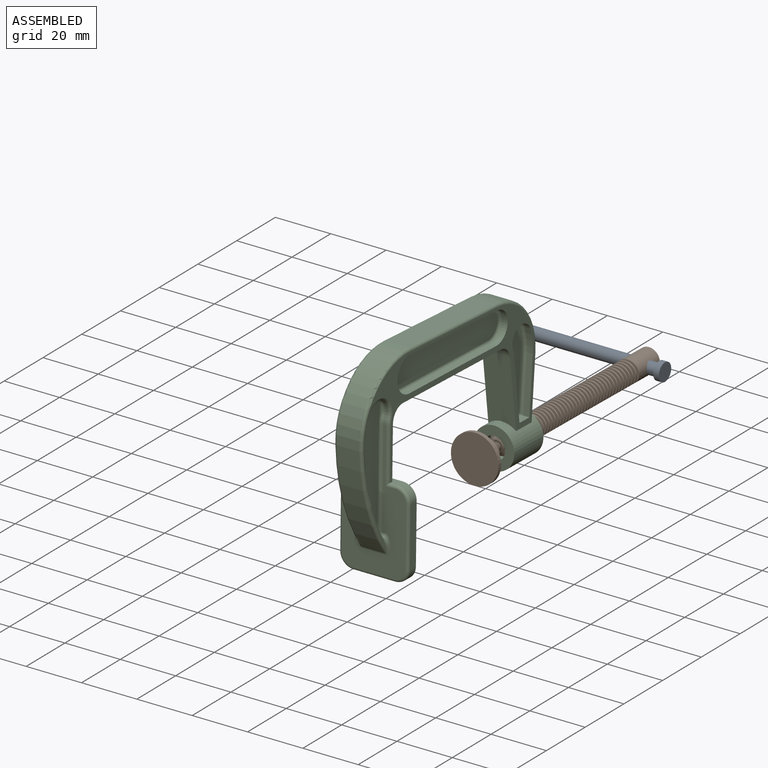
[diagram: assembled view]
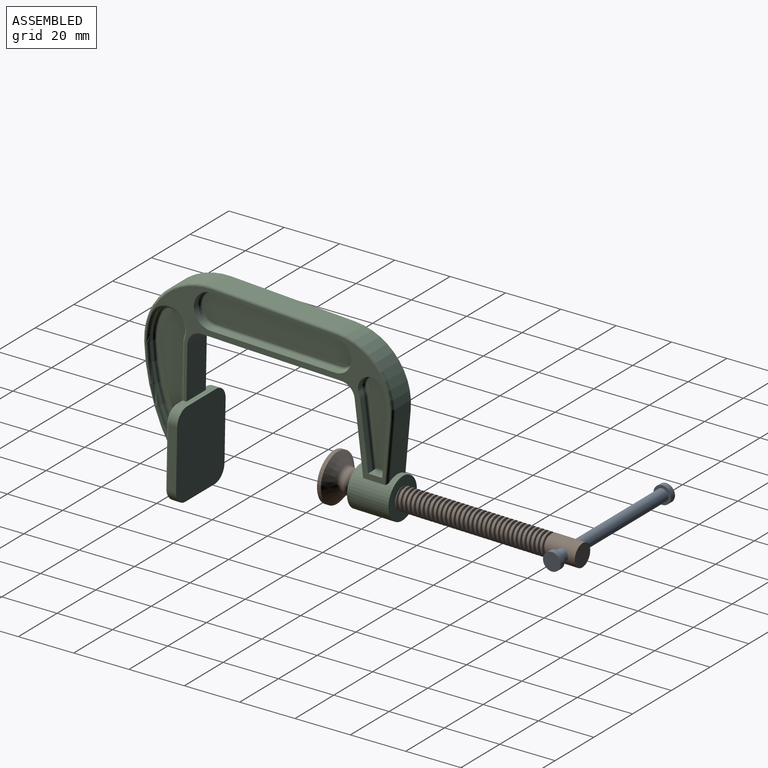
[diagram: assembled view, second angle]
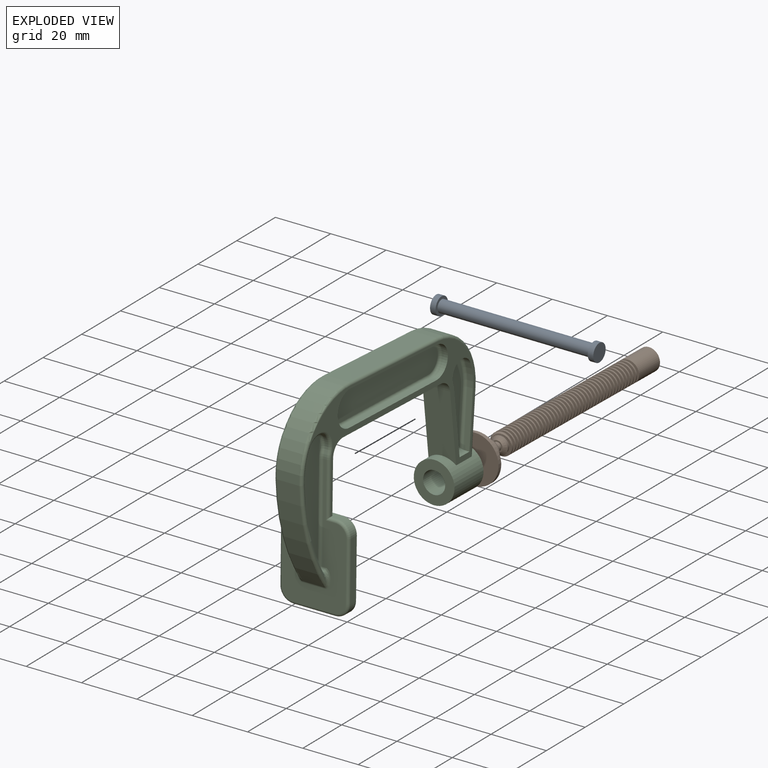
[diagram: exploded view]
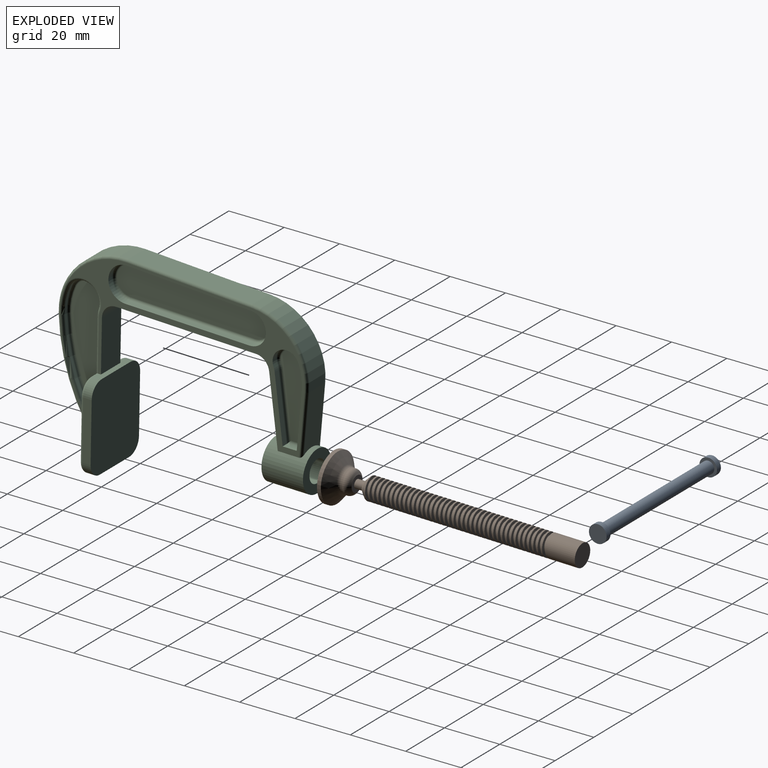
[diagram: exploded view, second angle]
ASSEMBLY  parts=3 mates=2
PART A: 7 faces, bbox 59x6.4x6.4 mm
  f0: cylinder r=2.2mm len=55mm, axis (-1,0,0), area 760.3mm2, adj f3,f6
  f1: cylinder r=3.2mm len=6.4mm, axis (-1,0,0), area 40.2mm2, adj f2,f3
  f2: plane 6.4x6.4mm, normal (1,0,0), area 32.2mm2, adj f1
  f3: plane 6.4x6.4mm, normal (-1,0,0), area 17mm2, adj f0,f1
  f4: cylinder r=3.2mm len=6.4mm, axis (1,0,0), area 40.2mm2, adj f5,f6
  f5: plane 6.4x6.4mm, normal (-1,0,0), area 32.2mm2, adj f4
  f6: plane 6.4x6.4mm, normal (1,0,0), area 17mm2, adj f0,f4
PART B: 23 faces, bbox 17.2x89.9x17.2 mm
  f0: plane 4.05x1mm, normal (0,0,-1), area 1mm2, adj f1,f2,f3,f4,f5,f6
  f1: cylinder r=4mm len=76.43mm, axis (0,-1,0), area 813.4mm2, adj f0,f2,f4,f5,f6,f7,f8,f9
  f2: bspline ~66.75x9.19mm, area 915.6mm2, adj f0,f1,f3,f11
  f3: cylinder r=3mm len=67.34mm, axis (0,1,0), area 828.8mm2, adj f0,f2,f4,f11
  f4: bspline ~67.55x9.19mm, area 928.1mm2, adj f0,f1,f3,f5,f7,f11
  f5: extruded ~3.05x0.02mm, area 0.1mm2, adj f0,f1,f4,f6
  f6: cylinder r=2.25mm len=8mm, axis (1,0,0), area 103.5mm2, adj f0,f1,f5,f8,f10,f12
  f7: cone r=2mm half-angle=45deg, axis (0,1,0), area 4.1mm2, adj f1,f4,f11
  f8: extruded ~2.45x0.02mm, area 0.1mm2, adj f1,f6,f9,f10
  f9: plane 8x8mm, normal (0,1,0), area 50.3mm2, adj f1,f8,f10
  f10: plane 2.45x0.01mm, normal (0,0,-1), area 0mm2, adj f1,f6,f8,f9
  f11: cone r=2mm half-angle=45deg, axis (0,1,0), area 31.4mm2, adj f2,f3,f4,f7,f13
  f12: cylinder r=4mm len=4.5mm, axis (0,-1,0), area 16.6mm2, adj f6
  f13: plane 4x4mm, normal (0,-1,0), area 5.3mm2, adj f11,f14
  f14: cylinder r=1.52mm len=3.06mm, axis (0,-1,0), area 29.2mm2, adj f13,f15
  f15: plane 5.63x5.63mm, normal (0,1,0), area 17.7mm2, adj f14,f16
  f16: cone r=3.39mm half-angle=55.5deg, axis (0,-1,0), area 13.5mm2, adj f15,f17
  f17: torus R=2.25mm, axis (0,-1,0), area 48.1mm2, adj f16,f18
  f18: cylinder r=4.25mm len=8.51mm, axis (0,-1,0), area 12.8mm2, adj f17,f19
  f19: torus R=6.25mm, axis (0,-1,0), area 49.9mm2, adj f18,f20
  f20: cone r=8.62mm half-angle=50.5deg, axis (0,-1,0), area 201.3mm2, adj f19,f21
  f21: cylinder r=8.62mm len=17.23mm, axis (0,-1,0), area 75.5mm2, adj f20,f22
  f22: plane 17.23x17.23mm, normal (0,-1,0), area 233.2mm2, adj f21
PART C: 122 faces, bbox 26x97.9x73.8 mm
  f0: plane 86.35x47.08mm, normal (1,0,0), area 516.3mm2, adj f1,f3,f10,f11,f12,f13,f33,f34
  f1: plane 18.67x10mm, normal (0,1,-0.02), area 186.7mm2, adj f0,f2,f10,f52
  f2: plane 86.35x47.08mm, normal (-1,0,0), area 516.3mm2, adj f1,f3,f10,f11,f12,f13,f21,f22
  f3: cylinder r=7.36mm len=15.28mm, axis (0,1,-0.02), area 596.1mm2, adj f0,f2,f4,f5,f13,f14,f71,f85
  f4: plane 14.72x14.72mm, normal (0,-1,0.02), area 119.9mm2, adj f3,f59
  f5: plane 14.72x14.72mm, normal (0,1,-0.02), area 119.9mm2, adj f3,f59
  f6: cylinder r=21.6mm len=23.5mm, axis (-1,0,0), area 276.4mm2, adj f7,f14,f75,f89
  f7: plane 44.88x8mm, normal (0,0.06,1), area 359.7mm2, adj f6,f8,f79,f94
  f8: cylinder r=23.78mm len=25.23mm, axis (-1,0,0), area 316.2mm2, adj f7,f9,f78,f98
  f9: cylinder r=68mm len=38.14mm, axis (-1,0,0), area 327.6mm2, adj f8,f82,f93,f101
  f10: cylinder r=5mm len=10mm, axis (-1,0,0), area 79.4mm2, adj f0,f1,f2,f11
  f11: plane 50.47x10mm, normal (0,-0.04,-1), area 505mm2, adj f0,f2,f10,f12
  f12: cylinder r=5mm len=10mm, axis (-1,0,0), area 70.6mm2, adj f0,f2,f11,f13
  f13: plane 25.37x10.13mm, normal (0,-0.99,-0.12), area 240.7mm2, adj f0,f2,f3,f12
  f14: plane 21.07x8.04mm, normal (0,1,-0.09), area 162.5mm2, adj f3,f6,f71,f85
  f15: cylinder r=5.72mm len=10.93mm, axis (-1,0,0), area 17.5mm2, adj f16,f19,f61,f74
  f16: cylinder r=7mm len=2.25mm, axis (-1,0,0), area 2.3mm2, adj f15,f17,f64,f70
  f17: plane 48.98x23mm, normal (0,-1,0.02), area 530.6mm2, adj f16,f45,f60,f62,f63,f66,f67,f68
  f18: cylinder r=66mm len=32.32mm, axis (-1,0,0), area 34.1mm2, adj f19,f69,f77,f82
  f19: cylinder r=21.78mm len=9.66mm, axis (-1,0,0), area 9.9mm2, adj f15,f18,f65,f78
  f20: plane 43.82x10.88mm, normal (-1,0,0), area 315.5mm2, adj f61,f64,f65,f68,f69
  f21: plane 44.88x2.75mm, normal (0,-0.06,-1), area 89.9mm2, adj f2,f22,f24,f112
  f22: cylinder r=5.72mm len=11.44mm, axis (-1,0,0), area 35.7mm2, adj f2,f21,f23,f113
  f23: plane 44.93x2mm, normal (0,0.04,1), area 89.9mm2, adj f2,f22,f24,f115
  f24: cylinder r=6.28mm len=12.56mm, axis (-1,0,0), area 39.8mm2, adj f2,f21,f23,f114
  f25: plane 54.92x12.2mm, normal (-1,0,0), area 529mm2, adj f112,f113,f114,f115
  f26: cylinder r=19.6mm len=8.78mm, axis (-1,0,0), area 17.9mm2, adj f2,f27,f31,f119
  f27: plane 19.95x2mm, normal (0,-1,0.09), area 40.1mm2, adj f2,f26,f28,f121
  f28: plane 5.1x2mm, normal (0,0.02,1), area 10.2mm2, adj f2,f27,f29,f120
  f29: plane 23.51x2.89mm, normal (0,0.99,0.12), area 47.4mm2, adj f2,f28,f30,f118
  f30: cylinder r=7mm len=2mm, axis (-1,0,0), area 3.4mm2, adj f2,f29,f31,f116
  f31: cylinder r=4.81mm len=9.3mm, axis (-1,0,0), area 30.2mm2, adj f2,f26,f30,f117
  f32: plane 29.8x8.6mm, normal (-1,0,0), area 177.9mm2, adj f116,f117,f118,f119,f120,f121
  f33: plane 44.88x2.75mm, normal (0,-0.06,-1), area 89.9mm2, adj f0,f34,f36,f109
  f34: cylinder r=6.28mm len=12.56mm, axis (1,0,0), area 39.8mm2, adj f0,f33,f35,f111
  f35: plane 44.93x2mm, normal (0,0.04,1), area 89.9mm2, adj f0,f34,f36,f110
  f36: cylinder r=5.72mm len=11.44mm, axis (1,0,0), area 35.7mm2, adj f0,f33,f35,f108
  f37: plane 54.92x12.2mm, normal (1,0,0), area 529mm2, adj f108,f109,f110,f111
  f38: plane 19.95x2mm, normal (0,-1,0.09), area 40.1mm2, adj f0,f39,f43,f103
  f39: cylinder r=19.6mm len=8.78mm, axis (1,0,0), area 17.9mm2, adj f0,f38,f40,f102
  f40: cylinder r=4.81mm len=9.3mm, axis (1,0,0), area 30.2mm2, adj f0,f39,f41,f104
  f41: cylinder r=7mm len=2mm, axis (1,0,0), area 3.4mm2, adj f0,f40,f42,f106
  f42: plane 23.51x2.89mm, normal (0,0.99,0.12), area 47.4mm2, adj f0,f41,f43,f107
  f43: plane 5.1x2mm, normal (0,0.02,1), area 10.2mm2, adj f0,f38,f42,f105
  f44: plane 29.8x8.6mm, normal (1,0,0), area 177.9mm2, adj f102,f103,f104,f105,f106,f107
  f45: cylinder r=7mm len=2.25mm, axis (1,0,0), area 2.3mm2, adj f17,f46,f88,f95
  f46: cylinder r=5.72mm len=10.93mm, axis (1,0,0), area 17.5mm2, adj f45,f47,f84,f99
  f47: cylinder r=21.78mm len=9.66mm, axis (1,0,0), area 9.9mm2, adj f46,f48,f87,f98
  f48: cylinder r=66mm len=32.32mm, axis (1,0,0), area 34.1mm2, adj f47,f91,f100,f101
  f49: plane 43.82x10.88mm, normal (1,0,0), area 315.5mm2, adj f84,f87,f88,f91,f92
  f50: plane 15x3mm, normal (0,-0.02,-1), area 45mm2, adj f51,f56,f58,f72
  f51: plane 31.31x25mm, normal (0,1,-0.02), area 761.5mm2, adj f50,f52,f53,f54,f55,f56,f57,f58
  f52: plane 15x3mm, normal (0,0.02,1), area 35mm2, adj f0,f1,f2,f51,f55,f57,f62,f86
  f53: plane 21.37x3.41mm, normal (1,0,0), area 64mm2, adj f51,f57,f58,f80
  f54: plane 21.37x3.41mm, normal (-1,0,0), area 64mm2, adj f51,f55,f56,f63
  f55: cylinder r=5mm len=5.06mm, axis (0,-1,0.02), area 23.6mm2, adj f51,f52,f54,f60
  f56: cylinder r=5mm len=5.06mm, axis (0,1,-0.02), area 23.6mm2, adj f50,f51,f54,f67
  f57: cylinder r=5mm len=5.06mm, axis (0,1,-0.02), area 23.6mm2, adj f51,f52,f53,f83
  f58: cylinder r=5mm len=5.06mm, axis (0,-1,0.02), area 23.6mm2, adj f50,f51,f53,f76
  f59: cylinder r=4mm len=15.15mm, axis (0,-1,0.02), area 377mm2, adj f4,f5
  f60: torus R=4mm, axis (0,1,-0.02), area 11.4mm2, adj f17,f55,f62,f63
  f61: torus R=4.72mm, axis (-1,0,0), area 25.8mm2, adj f15,f20,f64,f65
  f62: cylinder r=1mm len=3.5mm, axis (-1,0,0), area 4.5mm2, adj f17,f52,f60,f66
  f63: cylinder r=1mm len=21.33mm, axis (0,0.02,1), area 33.5mm2, adj f17,f54,f60,f67
  f64: torus R=8mm, axis (-1,0,0), area 3.8mm2, adj f16,f20,f61,f68
  f65: torus R=20.78mm, axis (-1,0,0), area 15.4mm2, adj f19,f20,f61,f69
  f66: cylinder r=1mm len=19.69mm, axis (0,-0.02,-1), area 29.9mm2, adj f2,f17,f62,f70
  f67: torus R=4mm, axis (0,1,-0.02), area 11.4mm2, adj f17,f56,f63,f72
  f68: cylinder r=1mm len=34.93mm, axis (0,-0.02,-1), area 54.9mm2, adj f17,f20,f64,f73
  f69: torus R=65mm, axis (-1,0,0), area 53.3mm2, adj f18,f20,f65,f73
  f70: torus R=6mm, axis (1,0,0), area 3.4mm2, adj f2,f16,f66,f74
  f71: cylinder r=1mm len=21.97mm, axis (0,0.09,1), area 33.8mm2, adj f2,f3,f14,f75
  f72: cylinder r=1mm len=15mm, axis (1,0,0), area 23.6mm2, adj f17,f50,f67,f76
  f73: sphere r=1mm, area 2.6mm2, adj f68,f69,f77
  f74: torus R=6.72mm, axis (1,0,0), area 29.3mm2, adj f2,f15,f70,f78
  f75: torus R=20.6mm, axis (1,0,0), area 53.4mm2, adj f2,f6,f71,f79
  f76: torus R=4mm, axis (0,1,-0.02), area 11.4mm2, adj f17,f58,f72,f80
  f77: cylinder r=1mm len=1.85mm, axis (-1,0,0), area 2.6mm2, adj f17,f18,f73,f81
  f78: torus R=22.78mm, axis (1,0,0), area 77mm2, adj f2,f8,f19,f74,f79,f82
  f79: cylinder r=1mm len=44.94mm, axis (0,-1,0.06), area 70.6mm2, adj f2,f7,f75,f78
  f80: cylinder r=1mm len=21.33mm, axis (0,-0.02,-1), area 33.5mm2, adj f17,f53,f76,f83
  f81: bspline ~6.99x3.02mm, area 10.8mm2, adj f17,f77,f82,f93
  f82: torus R=67mm, axis (1,0,0), area 118.1mm2, adj f9,f18,f78,f81
  f83: torus R=4mm, axis (0,1,-0.02), area 11.4mm2, adj f17,f57,f80,f86
  f84: torus R=4.72mm, axis (1,0,0), area 25.8mm2, adj f46,f49,f87,f88
  f85: cylinder r=1mm len=21.97mm, axis (0,-0.09,-1), area 33.8mm2, adj f0,f3,f14,f89
  f86: cylinder r=1mm len=3.5mm, axis (-1,0,0), area 4.5mm2, adj f17,f52,f83,f90
  f87: torus R=20.78mm, axis (1,0,0), area 15.4mm2, adj f47,f49,f84,f91
  f88: torus R=8mm, axis (1,0,0), area 3.8mm2, adj f45,f49,f84,f92
  f89: torus R=20.6mm, axis (1,0,0), area 53.4mm2, adj f0,f6,f85,f94
  f90: cylinder r=1mm len=19.69mm, axis (0,0.02,1), area 29.9mm2, adj f0,f17,f86,f95
  f91: torus R=65mm, axis (1,0,0), area 53.3mm2, adj f48,f49,f87,f96
  f92: cylinder r=1mm len=34.93mm, axis (0,-0.02,-1), area 54.9mm2, adj f17,f49,f88,f96
  f93: cylinder r=1mm len=8mm, axis (-1,0,0), area 5.2mm2, adj f9,f17,f81,f97
  f94: cylinder r=1mm len=44.94mm, axis (0,1,-0.06), area 70.6mm2, adj f0,f7,f89,f98
  f95: torus R=6mm, axis (1,0,0), area 3.4mm2, adj f0,f45,f90,f99
  f96: sphere r=1mm, area 2.6mm2, adj f91,f92,f100
  f97: bspline ~6.99x2.99mm, area 10.8mm2, adj f17,f93,f100,f101
  f98: torus R=22.78mm, axis (1,0,0), area 77mm2, adj f0,f8,f47,f94,f99,f101
  f99: torus R=6.72mm, axis (1,0,0), area 29.3mm2, adj f0,f46,f95,f98
  f100: cylinder r=1mm len=1.85mm, axis (1,0,0), area 2.6mm2, adj f17,f48,f96,f97
  f101: torus R=67mm, axis (1,0,0), area 118.1mm2, adj f9,f48,f97,f98
  f102: torus R=18.6mm, axis (1,0,0), area 13.8mm2, adj f39,f44,f103,f104
  f103: cylinder r=1mm len=20.04mm, axis (0,0.09,1), area 30.9mm2, adj f38,f44,f102,f105
  f104: torus R=3.81mm, axis (1,0,0), area 22mm2, adj f40,f44,f102,f106
  f105: cylinder r=1mm len=5.12mm, axis (0,1,-0.02), area 7mm2, adj f43,f44,f103,f107
  f106: torus R=8mm, axis (1,0,0), area 2.8mm2, adj f41,f44,f104,f107
  f107: cylinder r=1mm len=23.63mm, axis (0,0.12,-0.99), area 36.7mm2, adj f42,f44,f105,f106
  f108: torus R=4.72mm, axis (1,0,0), area 26.2mm2, adj f36,f37,f109,f110
  f109: cylinder r=1mm len=44.94mm, axis (0,-1,0.06), area 70.6mm2, adj f33,f37,f108,f111
  f110: cylinder r=1mm len=44.97mm, axis (0,1,-0.04), area 70.6mm2, adj f35,f37,f108,f111
  f111: torus R=5.28mm, axis (1,0,0), area 29.4mm2, adj f34,f37,f109,f110
  f112: cylinder r=1mm len=44.94mm, axis (0,1,-0.06), area 70.6mm2, adj f21,f25,f113,f114
  f113: torus R=4.72mm, axis (-1,0,0), area 26.2mm2, adj f22,f25,f112,f115
  f114: torus R=5.28mm, axis (-1,0,0), area 29.4mm2, adj f24,f25,f112,f115
  f115: cylinder r=1mm len=44.97mm, axis (0,-1,0.04), area 70.6mm2, adj f23,f25,f113,f114
  f116: torus R=8mm, axis (-1,0,0), area 2.8mm2, adj f30,f32,f117,f118
  f117: torus R=3.81mm, axis (-1,0,0), area 22mm2, adj f31,f32,f116,f119
  f118: cylinder r=1mm len=23.63mm, axis (0,-0.12,0.99), area 36.7mm2, adj f29,f32,f116,f120
  f119: torus R=18.6mm, axis (-1,0,0), area 13.8mm2, adj f26,f32,f117,f121
  f120: cylinder r=1mm len=5.12mm, axis (0,-1,0.02), area 7mm2, adj f28,f32,f118,f121
  f121: cylinder r=1mm len=20.04mm, axis (0,-0.09,-1), area 30.9mm2, adj f27,f32,f119,f120
PLACE A rot(axis=(-1,0,0),1.1deg) t=(-766.41,395.24,-611.32)mm
PLACE B rot(axis=(-1,0,0),1.1deg) t=(-768.51,395.24,-611.32)mm
PLACE C t=(-768.51,378.07,-602.87)mm
MATE slider A.f0 <-> B.f6  axis (1,0,0) through (60.59,223.23,61.61)mm
MATE cylindrical B.f1 <-> C.f3  axis (0,1,-0.02) through (51.49,227.93,61.51)mm
